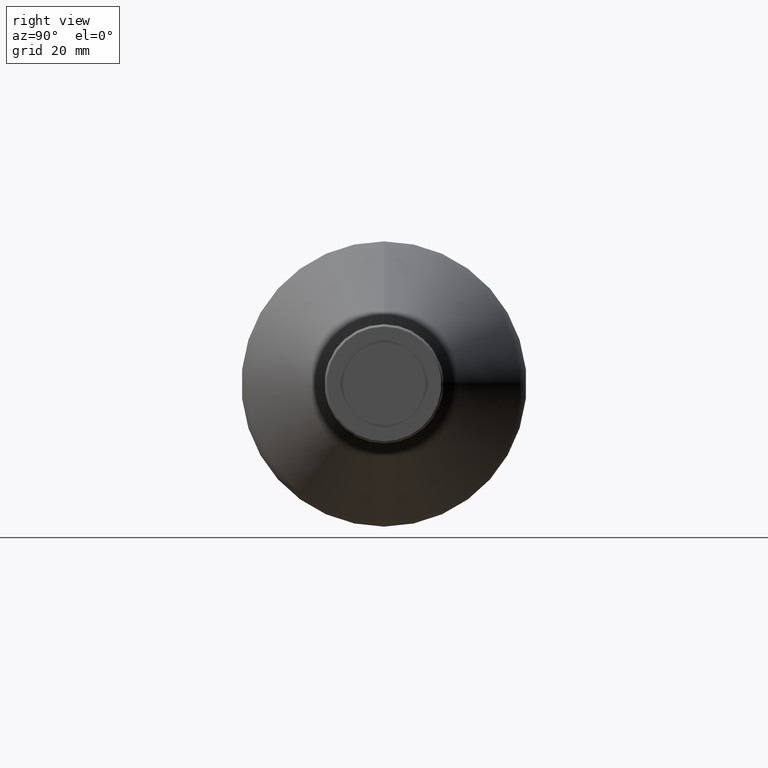
[diagram: clean part render]
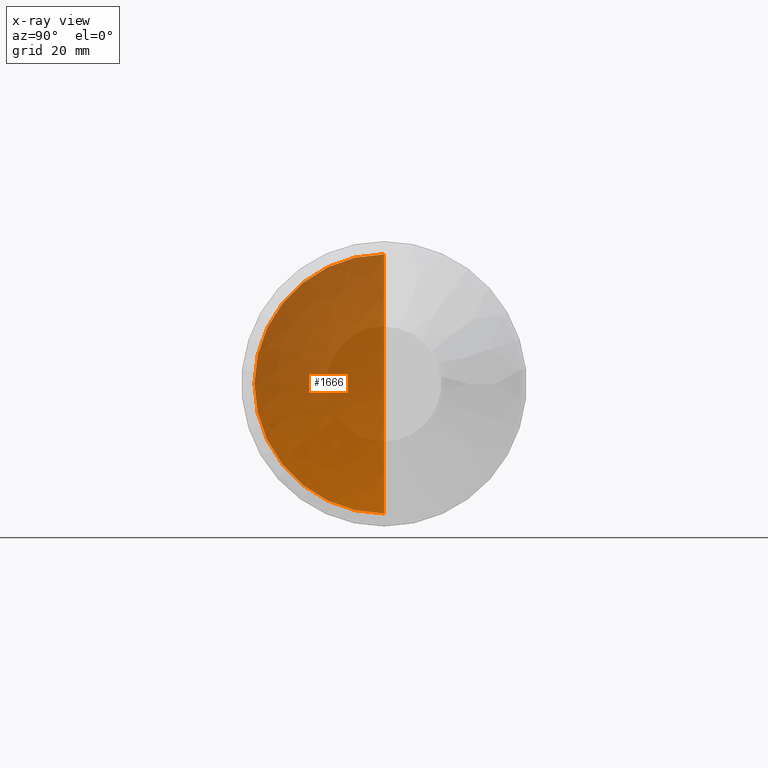
[diagram: x-ray — body ghosted, one internal face saturated and labeled with its STEP entity id]
A machine part, right view, then the same camera in x-ray: the body is ghosted and one INTERNAL B-rep face — a face not visible from any outside direction — is saturated and labeled: STEP entity #1666.
In plain terms, the highlighted face is a freeform B-spline surface patch.
Its self-contained STEP definition (entity closure, byte-faithful):
#86 = CIRCLE ( 'NONE', #1099, 103.5620099999999900 ) ;
#119 = CARTESIAN_POINT ( 'NONE',  ( -17.93686457125667000, -54.14994626271617800, -137.0364420592419500 ) ) ;
#123 = CARTESIAN_POINT ( 'NONE',  ( -20.60841295408998900, -1.674005273986338600E-015, -177.7807055945911300 ) ) ;
#269 = AXIS2_PLACEMENT_3D ( 'NONE', #1838, #1524, #943 ) ;
#296 = CARTESIAN_POINT ( 'NONE',  ( -12.69680763302423500, -4.861847792609153000E-015, -203.8114151905523400 ) ) ;
#310 =( BOUNDED_SURFACE ( )  B_SPLINE_SURFACE ( 3, 3, ( 
 ( #1726, #2084, #832, #2100 ),
 ( #673, #663, #1919, #123 ),
 ( #859, #119, #1572, #1022 ),
 ( #678, #1932, #2281, #296 ) ),
 .UNSPECIFIED., .F., .F., .T. ) 
 B_SPLINE_SURFACE_WITH_KNOTS ( ( 4, 4 ),
 ( 4, 4 ),
 ( 0.0000000000000000000, 1.000000000000000000 ),
 ( 0.0000000000000000000, 1.000000000000000000 ),
 .UNSPECIFIED. ) 
 GEOMETRIC_REPRESENTATION_ITEM ( )  RATIONAL_B_SPLINE_SURFACE ( (
 ( 1.000000000000000000, 0.3333333333333334300, 0.3333333333333334300, 1.000000000000000000),
 ( 0.9871435571350890600, 0.3290478523783630900, 0.3290478523783630900, 0.9871435571350890600),
 ( 0.9871435571350890600, 0.3290478523783630900, 0.3290478523783630900, 0.9871435571350890600),
 ( 1.000000000000000000, 0.3333333333333334300, 0.3333333333333334300, 1.000000000000000000) ) ) 
 REPRESENTATION_ITEM ( '' )  SURFACE ( )  );
#403 = CARTESIAN_POINT ( 'NONE',  ( -20.60841295408999200, 0.0000000000000000000, -164.1114151906000100 ) ) ;
#424 = CARTESIAN_POINT ( 'NONE',  ( 82.95359704590998700, 0.0000000000000000000, -164.1114151906000100 ) ) ;
#629 = ORIENTED_EDGE ( 'NONE', *, *, #1129, .F. ) ;
#663 = CARTESIAN_POINT ( 'NONE',  ( -20.60841295408999200, -27.33858080798228900, -150.4421247866088400 ) ) ;
#673 = CARTESIAN_POINT ( 'NONE',  ( -20.60841295408998900, 0.0000000000000000000, -150.4421247866089000 ) ) ;
#678 = CARTESIAN_POINT ( 'NONE',  ( -12.69680763302423500, 0.0000000000000000000, -124.4114151906476900 ) ) ;
#725 = VERTEX_POINT ( 'NONE', #2008 ) ;
#800 = DIRECTION ( 'NONE',  ( 0.0000000000000000000, 1.000000000000000000, 0.0000000000000000000 ) ) ;
#801 = VERTEX_POINT ( 'NONE', #979 ) ;
#810 = CIRCLE ( 'NONE', #1648, 103.5620099999999900 ) ;
#832 = CARTESIAN_POINT ( 'NONE',  ( -20.60841295408999600, 0.0000000000000000000, -164.1114151906000100 ) ) ;
#845 = DIRECTION ( 'NONE',  ( -1.000000000000000000, 0.0000000000000000000, 0.0000000000000000000 ) ) ;
#859 = CARTESIAN_POINT ( 'NONE',  ( -17.93686457125666300, 0.0000000000000000000, -137.0364420592418900 ) ) ;
#892 = FACE_OUTER_BOUND ( 'NONE', #1247, .T. ) ;
#943 = DIRECTION ( 'NONE',  ( 0.0000000000000000000, 0.0000000000000000000, 1.000000000000000000 ) ) ;
#979 = CARTESIAN_POINT ( 'NONE',  ( -12.69680763302424800, 0.0000000000000000000, -124.4114151906477200 ) ) ;
#1022 = CARTESIAN_POINT ( 'NONE',  ( -17.93686457125666300, -3.315727918231827800E-015, -191.1863883219580800 ) ) ;
#1030 = CIRCLE ( 'NONE', #269, 39.69999999995231800 ) ;
#1099 = AXIS2_PLACEMENT_3D ( 'NONE', #424, #800, #1711 ) ;
#1129 = EDGE_CURVE ( 'NONE', #1972, #725, #810, .T. ) ;
#1247 = EDGE_LOOP ( 'NONE', ( #629, #1537, #2167 ) ) ;
#1421 = EDGE_CURVE ( 'NONE', #801, #725, #1030, .T. ) ;
#1524 = DIRECTION ( 'NONE',  ( 1.000000000000000000, 0.0000000000000000000, 0.0000000000000000000 ) ) ;
#1537 = ORIENTED_EDGE ( 'NONE', *, *, #2274, .T. ) ;
#1564 = DIRECTION ( 'NONE',  ( 0.0000000000000000000, -1.000000000000000000, 1.224646799147353200E-016 ) ) ;
#1572 = CARTESIAN_POINT ( 'NONE',  ( -17.93686457125667000, -54.14994626271617800, -191.1863883219581300 ) ) ;
#1648 = AXIS2_PLACEMENT_3D ( 'NONE', #2277, #1564, #845 ) ;
#1666 = ADVANCED_FACE ( 'NONE', ( #892 ), #310, .T. ) ;
#1711 = DIRECTION ( 'NONE',  ( -1.000000000000000000, 0.0000000000000000000, 0.0000000000000000000 ) ) ;
#1726 = CARTESIAN_POINT ( 'NONE',  ( -20.60841295408999200, 0.0000000000000000000, -164.1114151906000100 ) ) ;
#1838 = CARTESIAN_POINT ( 'NONE',  ( -12.69680763302424800, 0.0000000000000000000, -164.1114151906000100 ) ) ;
#1919 = CARTESIAN_POINT ( 'NONE',  ( -20.60841295408999200, -27.33858080798228900, -177.7807055945911800 ) ) ;
#1932 = CARTESIAN_POINT ( 'NONE',  ( -12.69680763302423400, -79.39999999990465100, -124.4114151906477000 ) ) ;
#1972 = VERTEX_POINT ( 'NONE', #403 ) ;
#2008 = CARTESIAN_POINT ( 'NONE',  ( -12.69680763302424800, -4.861847792609150700E-015, -203.8114151905523400 ) ) ;
#2084 = CARTESIAN_POINT ( 'NONE',  ( -20.60841295408999600, 0.0000000000000000000, -164.1114151906000100 ) ) ;
#2100 = CARTESIAN_POINT ( 'NONE',  ( -20.60841295408999200, 0.0000000000000000000, -164.1114151906000100 ) ) ;
#2167 = ORIENTED_EDGE ( 'NONE', *, *, #1421, .T. ) ;
#2274 = EDGE_CURVE ( 'NONE', #1972, #801, #86, .T. ) ;
#2277 = CARTESIAN_POINT ( 'NONE',  ( 82.95359704590998700, 0.0000000000000000000, -164.1114151906000100 ) ) ;
#2281 = CARTESIAN_POINT ( 'NONE',  ( -12.69680763302423400, -79.39999999990465100, -203.8114151905523400 ) ) ;